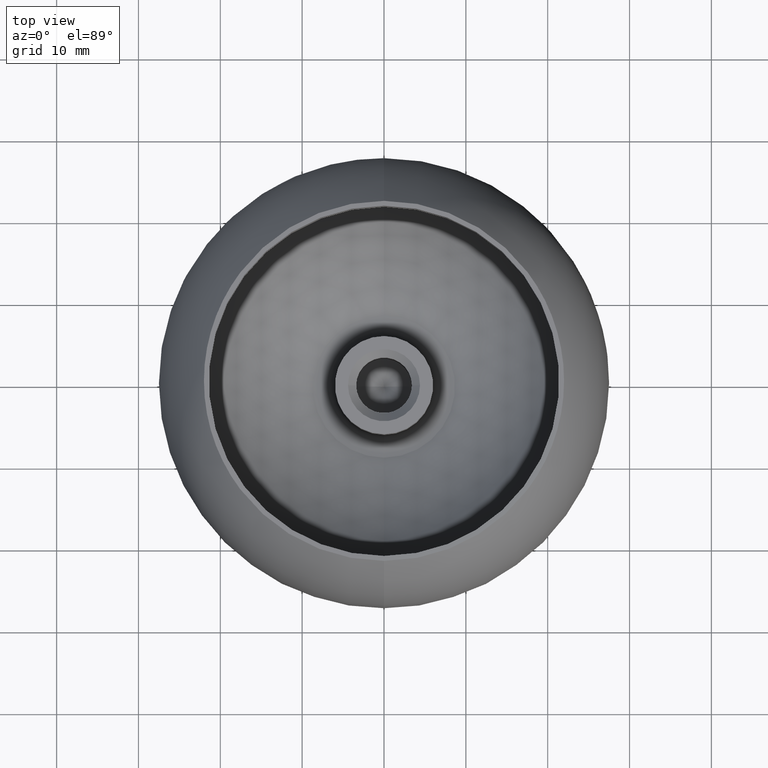
[diagram: clean part render]
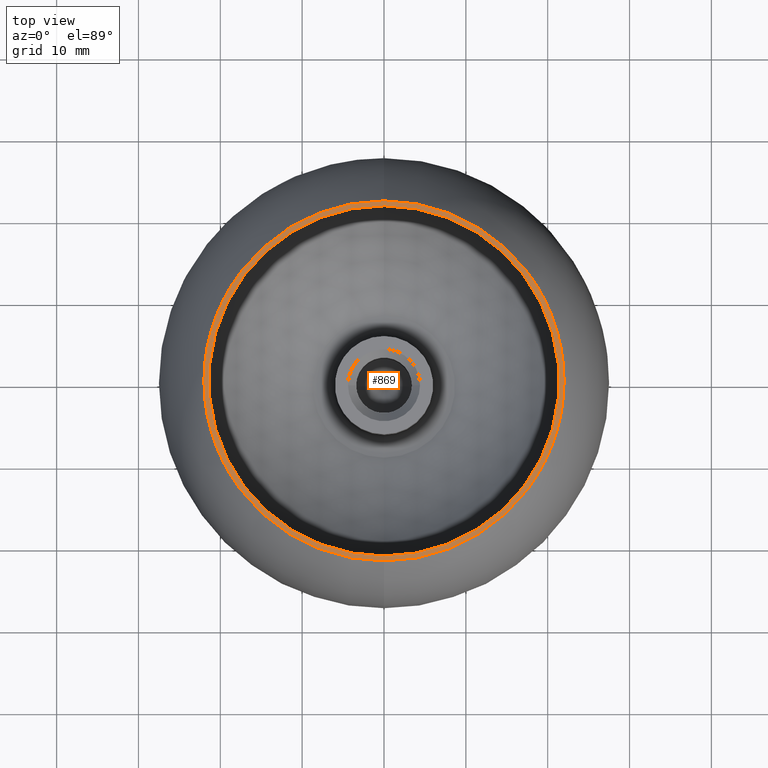
[diagram: same view with one face highlighted and labeled with its STEP entity id]
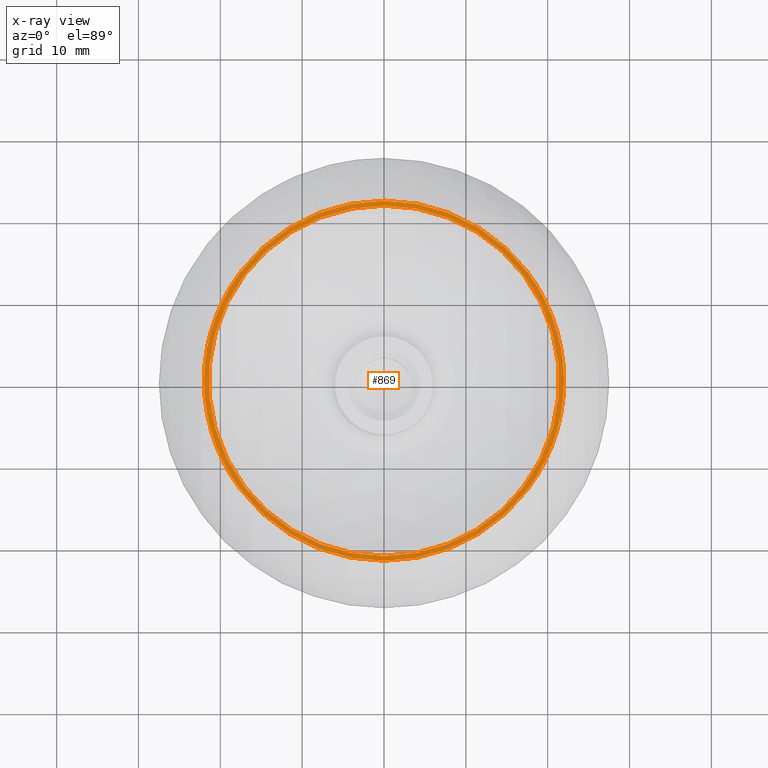
[diagram: x-ray of the same camera — body ghosted, the highlighted face saturated]
A machine part, top view. The second image highlights one B-rep face of the part: STEP entity #869.
The next image is the same camera in x-ray: the body ghosted, the highlighted face saturated — about 0% of this face is hidden behind the body in this view.
In plain terms, the highlighted planar face has unit normal (0, 0, 1).
Its self-contained STEP definition (entity closure, byte-faithful):
#22 = PLANE ( 'NONE',  #1574 ) ;
#77 = DIRECTION ( 'NONE',  ( -0.0000000000000000000, -2.114042506676481100E-016, -1.000000000000000000 ) ) ;
#374 = DIRECTION ( 'NONE',  ( 0.0000000000000000000, 1.000000000000000000, -1.577021341797098100E-016 ) ) ;
#631 = AXIS2_PLACEMENT_3D ( 'NONE', #3909, #10504, #4917 ) ;
#650 = CIRCLE ( 'NONE', #7091, 21.39999999999998800 ) ;
#803 = CIRCLE ( 'NONE', #8388, 21.99999999999998900 ) ;
#846 = VERTEX_POINT ( 'NONE', #4821 ) ;
#869 = ADVANCED_FACE ( 'NONE', ( #2340, #12153 ), #22, .T. ) ;
#876 = CARTESIAN_POINT ( 'NONE',  ( 0.0000000000000000000, 21.39999999999999500, 16.50000000000000700 ) ) ;
#1574 = AXIS2_PLACEMENT_3D ( 'NONE', #876, #8552, #1805 ) ;
#1720 = VERTEX_POINT ( 'NONE', #6617 ) ;
#1805 = DIRECTION ( 'NONE',  ( 0.0000000000000000000, -1.000000000000000000, 2.114042506676481100E-016 ) ) ;
#1973 = CIRCLE ( 'NONE', #4198, 21.39999999999998800 ) ;
#2340 = FACE_BOUND ( 'NONE', #5447, .T. ) ;
#2369 = ORIENTED_EDGE ( 'NONE', *, *, #7729, .F. ) ;
#2477 = CARTESIAN_POINT ( 'NONE',  ( 0.0000000000000000000, 21.99999999999999300, 16.50000000000000700 ) ) ;
#2814 = CARTESIAN_POINT ( 'NONE',  ( 0.0000000000000000000, 4.250118982893686900E-015, 16.50000000000001800 ) ) ;
#3206 = CARTESIAN_POINT ( 'NONE',  ( 2.620744150175334700E-015, -21.39999999999998400, 16.50000000000002100 ) ) ;
#3909 = CARTESIAN_POINT ( 'NONE',  ( 0.0000000000000000000, 4.250118982893685300E-015, 16.50000000000001100 ) ) ;
#4198 = AXIS2_PLACEMENT_3D ( 'NONE', #2814, #9447, #8476 ) ;
#4603 = EDGE_LOOP ( 'NONE', ( #2369, #6541 ) ) ;
#4696 = VERTEX_POINT ( 'NONE', #2477 ) ;
#4821 = CARTESIAN_POINT ( 'NONE',  ( 2.694222958124175600E-015, -21.99999999999998600, 16.50000000000001400 ) ) ;
#4917 = DIRECTION ( 'NONE',  ( 0.0000000000000000000, 1.000000000000000000, -1.577021341797098100E-016 ) ) ;
#5447 = EDGE_LOOP ( 'NONE', ( #9854, #9326 ) ) ;
#6234 = VERTEX_POINT ( 'NONE', #3206 ) ;
#6276 = CIRCLE ( 'NONE', #631, 21.99999999999998900 ) ;
#6442 = EDGE_CURVE ( 'NONE', #6234, #1720, #650, .T. ) ;
#6541 = ORIENTED_EDGE ( 'NONE', *, *, #11112, .F. ) ;
#6617 = CARTESIAN_POINT ( 'NONE',  ( 0.0000000000000000000, 21.39999999999999100, 16.50000000000001400 ) ) ;
#6734 = DIRECTION ( 'NONE',  ( 0.0000000000000000000, 1.000000000000000000, -1.621236893436269100E-016 ) ) ;
#7091 = AXIS2_PLACEMENT_3D ( 'NONE', #11410, #77, #6734 ) ;
#7729 = EDGE_CURVE ( 'NONE', #4696, #846, #6276, .T. ) ;
#8388 = AXIS2_PLACEMENT_3D ( 'NONE', #8984, #11588, #374 ) ;
#8476 = DIRECTION ( 'NONE',  ( 0.0000000000000000000, 1.000000000000000000, -1.621236893436269100E-016 ) ) ;
#8552 = DIRECTION ( 'NONE',  ( 0.0000000000000000000, 2.114042506676481100E-016, 1.000000000000000000 ) ) ;
#8984 = CARTESIAN_POINT ( 'NONE',  ( 0.0000000000000000000, 4.250118982893685300E-015, 16.50000000000001100 ) ) ;
#9282 = EDGE_CURVE ( 'NONE', #1720, #6234, #1973, .T. ) ;
#9326 = ORIENTED_EDGE ( 'NONE', *, *, #6442, .T. ) ;
#9447 = DIRECTION ( 'NONE',  ( -0.0000000000000000000, -2.114042506676481100E-016, -1.000000000000000000 ) ) ;
#9854 = ORIENTED_EDGE ( 'NONE', *, *, #9282, .T. ) ;
#10504 = DIRECTION ( 'NONE',  ( -0.0000000000000000000, -2.114042506676481100E-016, -1.000000000000000000 ) ) ;
#11112 = EDGE_CURVE ( 'NONE', #846, #4696, #803, .T. ) ;
#11410 = CARTESIAN_POINT ( 'NONE',  ( 0.0000000000000000000, 4.250118982893686900E-015, 16.50000000000001800 ) ) ;
#11588 = DIRECTION ( 'NONE',  ( -0.0000000000000000000, -2.114042506676481100E-016, -1.000000000000000000 ) ) ;
#12153 = FACE_OUTER_BOUND ( 'NONE', #4603, .T. ) ;